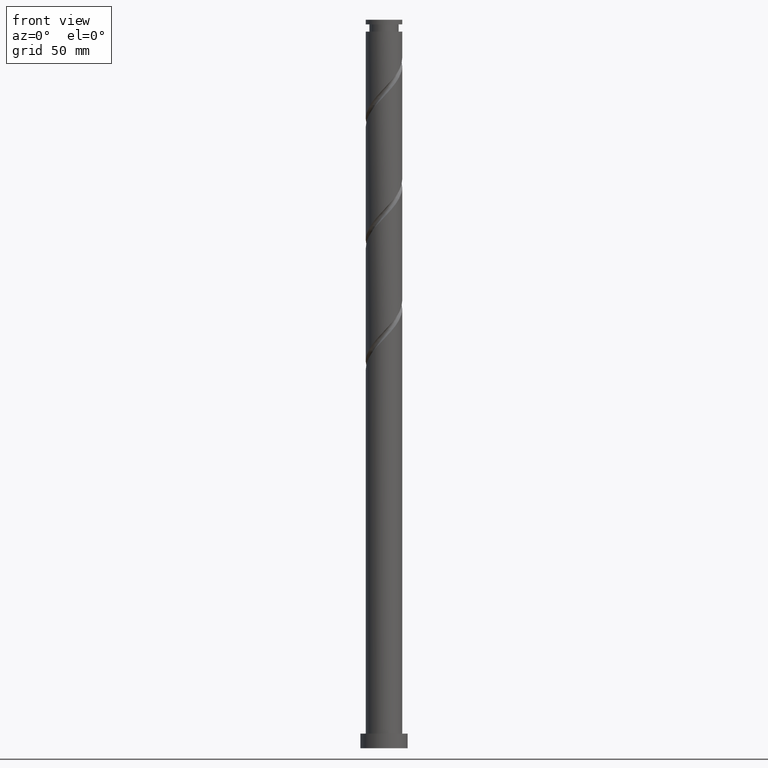
[diagram: clean part render]
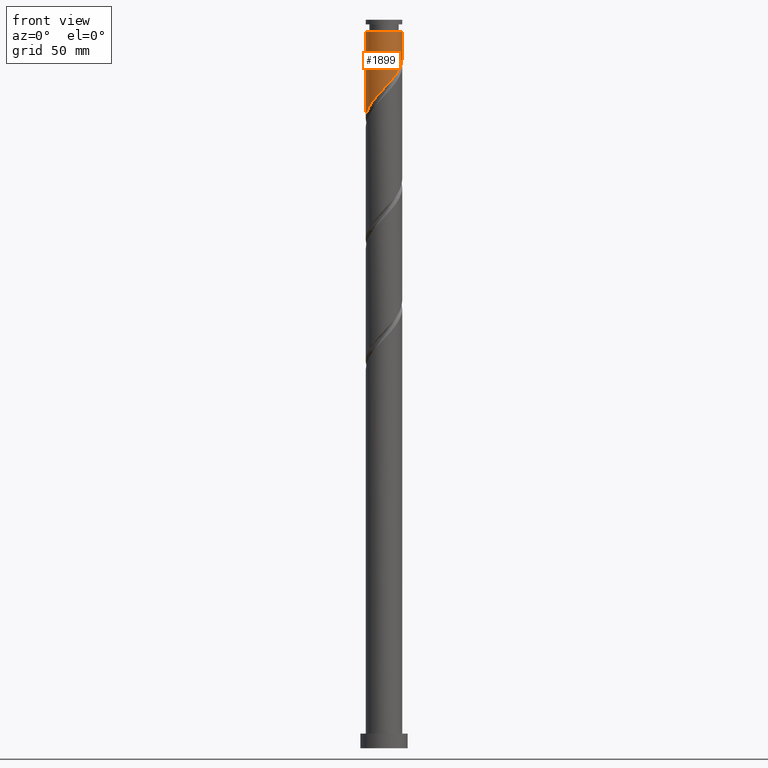
[diagram: same view with one face highlighted and labeled with its STEP entity id]
A machine part, front view. The second image highlights one B-rep face of the part: STEP entity #1899.
In plain terms, the highlighted cylindrical surface (edge-blend (fillet) strip) has radius 10 mm, axis along (-0, -0, -1).
Its self-contained STEP definition (entity closure, byte-faithful):
#5 = CARTESIAN_POINT ( 'NONE',  ( -3.019996379816876519, -9.590845212647908014, 359.0717007790819366 ) ) ;
#26 = CARTESIAN_POINT ( 'NONE',  ( 1.142044211173212975, -9.990016268595571347, 363.5161452235263937 ) ) ;
#141 = CARTESIAN_POINT ( 'NONE',  ( -8.080585767236980743, -5.984047433418745676, 352.4050341124153647 ) ) ;
#150 = CARTESIAN_POINT ( 'NONE',  ( -5.803951609303261705, -8.143349784754805754, 355.7383674457486222 ) ) ;
#166 = CARTESIAN_POINT ( 'NONE',  ( 10.00000000000000178, -0.4784399928674961111, 378.4663732748172151 ) ) ;
#195 = CARTESIAN_POINT ( 'NONE',  ( 10.00000000000000355, 5.471120043963557897E-15, 378.9749218003813098 ) ) ;
#315 = CARTESIAN_POINT ( 'NONE',  ( 4.150371980848572839, -9.098044428369600922, 366.8494785568597649 ) ) ;
#333 = EDGE_CURVE ( 'NONE', #1229, #1620, #1861, .T. ) ;
#335 = CARTESIAN_POINT ( 'NONE',  ( -7.370218964083902868, -6.758688661379370188, 353.5161452235265074 ) ) ;
#359 = DIRECTION ( 'NONE',  ( -0.000000000000000000, -0.000000000000000000, -1.000000000000000000 ) ) ;
#421 = CARTESIAN_POINT ( 'NONE',  ( 0.000000000000000000, 0.000000000000000000, 393.5161452235263937 ) ) ;
#422 = EDGE_CURVE ( 'NONE', #1706, #1646, #1900, .T. ) ;
#450 = DIRECTION ( 'NONE',  ( -0.000000000000000000, -0.000000000000000000, -1.000000000000000000 ) ) ;
#466 = CARTESIAN_POINT ( 'NONE',  ( 9.954323590151835432, -0.9546946436147987214, 377.9605896679708508 ) ) ;
#594 = DIRECTION ( 'NONE',  ( -1.000000000000000000, 0.000000000000000000, 0.000000000000000000 ) ) ;
#600 = CARTESIAN_POINT ( 'NONE',  ( -9.999999999999968026, 0.000000000000000000, 393.5161452235263937 ) ) ;
#629 = CARTESIAN_POINT ( 'NONE',  ( 8.705417805181468793, -4.920945116258622853, 373.5161452235263937 ) ) ;
#638 = CARTESIAN_POINT ( 'NONE',  ( 6.795917408009017890, -7.410816190582407259, 370.1828118901930225 ) ) ;
#648 = CARTESIAN_POINT ( 'NONE',  ( 5.951266195457261432, -8.036319472918416196, 369.0717007790820503 ) ) ;
#658 = CARTESIAN_POINT ( 'NONE',  ( 0.000000000000000000, 0.000000000000000000, 400.0000000000000000 ) ) ;
#708 = VECTOR ( 'NONE', #979, 1000.000000000000000 ) ;
#753 = CARTESIAN_POINT ( 'NONE',  ( 9.999999999999968026, 1.224646799147351284E-15, 393.5161452235263937 ) ) ;
#786 = CARTESIAN_POINT ( 'NONE',  ( -9.148159000562355203, -4.173233390011671595, 350.1828118901931930 ) ) ;
#816 = CARTESIAN_POINT ( 'NONE',  ( -9.935289914203551120, -1.135787973490349101, 346.8494785568596512 ) ) ;
#827 = CARTESIAN_POINT ( 'NONE',  ( 10.00000000000000178, 1.224646799147353454E-15, 400.0000000000000000 ) ) ;
#844 = ORIENTED_EDGE ( 'NONE', *, *, #1287, .T. ) ;
#934 = CARTESIAN_POINT ( 'NONE',  ( -10.00000000000000355, -0.5697373744643030591, 346.2471797764323469 ) ) ;
#935 = ORIENTED_EDGE ( 'NONE', *, *, #333, .F. ) ;
#953 = CARTESIAN_POINT ( 'NONE',  ( -9.482036394194125251, -3.176631206038586175, 349.0717007790818798 ) ) ;
#960 = FACE_OUTER_BOUND ( 'NONE', #1583, .T. ) ;
#969 = CARTESIAN_POINT ( 'NONE',  ( -8.614372383899667085, -5.078640411715207748, 351.2939230013041083 ) ) ;
#979 = DIRECTION ( 'NONE',  ( -0.000000000000000000, -0.000000000000000000, -1.000000000000000000 ) ) ;
#999 = CARTESIAN_POINT ( 'NONE',  ( -10.00000000000000178, 0.000000000000000000, 400.0000000000000000 ) ) ;
#1104 = CARTESIAN_POINT ( 'NONE',  ( 9.538305559066323269, -3.003452523660809170, 375.7383674457486791 ) ) ;
#1110 =( BOUNDED_CURVE ( )  B_SPLINE_CURVE ( 2, ( #1424, #166, #466, #1558, #1104, #1433, #629, #1741, #1879, #638, #648, #1115, #315, #1723, #1901, #26, #1260, #1280, #1733, #5, #1127, #1416, #150, #1585, #335, #141, #969, #786, #953, #1860, #816, #934, #1568 ),
 .UNSPECIFIED., .F., .T. ) 
 B_SPLINE_CURVE_WITH_KNOTS ( ( 3, 2, 2, 2, 2, 2, 2, 2, 2, 2, 2, 2, 2, 2, 2, 2, 3 ),
 ( 0.3045286012773114059, 0.3083333333333333481, 0.3166666666666666519, 0.3250000000000000111, 0.3333333333333333148, 0.3416666666666666741, 0.3499999999999999778, 0.3583333333333333370, 0.3666666666666666408, 0.3750000000000000000, 0.3833333333333333592, 0.3916666666666666630, 0.4000000000000000222, 0.4083333333333333259, 0.4166666666666666852, 0.4249999999999999889, 0.4295286012773116280 ),
 .UNSPECIFIED. ) 
 CURVE ( )  GEOMETRIC_REPRESENTATION_ITEM ( )  RATIONAL_B_SPLINE_CURVE ( ( 0.9066196499552116039, 0.9068171577856243282, 0.9090909090909231605, 0.9041108139711716563, 0.9090909090909231605, 0.9041108139711716563, 0.9090909090909231605, 0.9041108139711716563, 0.9090909090909231605, 0.9041108139711716563, 0.9090909090909231605, 0.9041108139711716563, 0.9090909090909231605, 0.9041108139711716563, 0.9090909090909231605, 0.9041108139711716563, 0.9090909090909231605, 0.9041108139711716563, 0.9090909090909231605, 0.9041108139711716563, 0.9090909090909231605, 0.9041108139711716563, 0.9090909090909231605, 0.9041108139711716563, 0.9090909090909231605, 0.9041108139711716563, 0.9090909090909231605, 0.9041108139711716563, 0.9090909090909231605, 0.9041108139711716563, 0.9090909090909231605, 0.9063845652764703775, 0.9066196499552116039 ) ) 
 REPRESENTATION_ITEM ( '' )  );
#1115 = CARTESIAN_POINT ( 'NONE',  ( 5.106614982905505862, -8.661822755254421580, 367.9605896679708508 ) ) ;
#1127 = CARTESIAN_POINT ( 'NONE',  ( -3.984023718746288800, -9.172107446408757525, 357.9605896679709076 ) ) ;
#1229 = VERTEX_POINT ( 'NONE', #753 ) ;
#1260 = CARTESIAN_POINT ( 'NONE',  ( 0.09104542128179636540, -9.999585527973833265, 362.4050341124153078 ) ) ;
#1272 = AXIS2_PLACEMENT_3D ( 'NONE', #658, #1293, #2012 ) ;
#1280 = CARTESIAN_POINT ( 'NONE',  ( -0.9599533686096201057, -10.00915478735209696, 361.2939230013041652 ) ) ;
#1287 = EDGE_CURVE ( 'NONE', #1229, #1706, #1434, .T. ) ;
#1293 = DIRECTION ( 'NONE',  ( -0.000000000000000000, -0.000000000000000000, -1.000000000000000000 ) ) ;
#1416 = CARTESIAN_POINT ( 'NONE',  ( -4.948051057675693976, -8.753369680169619471, 356.8494785568598786 ) ) ;
#1424 = CARTESIAN_POINT ( 'NONE',  ( 10.00000000000000355, 5.471120043963557897E-15, 378.9749218003813098 ) ) ;
#1433 = CARTESIAN_POINT ( 'NONE',  ( 9.222629978410189722, -4.005968835176823895, 374.6272563346375932 ) ) ;
#1434 = CIRCLE ( 'NONE', #1846, 9.999999999999968026 ) ;
#1442 = CYLINDRICAL_SURFACE ( 'NONE', #1272, 10.00000000000000178 ) ;
#1471 = CARTESIAN_POINT ( 'NONE',  ( -10.00000000000000355, 4.125762656103666624E-15, 345.6415884670478249 ) ) ;
#1558 = CARTESIAN_POINT ( 'NONE',  ( 9.853981139722460370, -2.000936212144786897, 376.8494785568597649 ) ) ;
#1568 = CARTESIAN_POINT ( 'NONE',  ( -10.00000000000000355, 4.125762656103666624E-15, 345.6415884670478249 ) ) ;
#1583 = EDGE_LOOP ( 'NONE', ( #935, #844, #1592, #1687 ) ) ;
#1585 = CARTESIAN_POINT ( 'NONE',  ( -6.659852160930825882, -7.533329889339995589, 354.6272563346375932 ) ) ;
#1592 = ORIENTED_EDGE ( 'NONE', *, *, #422, .T. ) ;
#1620 = VERTEX_POINT ( 'NONE', #195 ) ;
#1646 = VERTEX_POINT ( 'NONE', #1471 ) ;
#1654 = VECTOR ( 'NONE', #359, 1000.000000000000000 ) ;
#1687 = ORIENTED_EDGE ( 'NONE', *, *, #1886, .F. ) ;
#1706 = VERTEX_POINT ( 'NONE', #600 ) ;
#1723 = CARTESIAN_POINT ( 'NONE',  ( 3.194128978791636264, -9.534266101484783817, 365.7383674457486791 ) ) ;
#1733 = CARTESIAN_POINT ( 'NONE',  ( -1.989974874213246370, -9.800000000000000711, 360.1828118901931362 ) ) ;
#1741 = CARTESIAN_POINT ( 'NONE',  ( 8.188205631952733654, -5.835921397340429806, 372.4050341124153078 ) ) ;
#1846 = AXIS2_PLACEMENT_3D ( 'NONE', #421, #450, #594 ) ;
#1860 = CARTESIAN_POINT ( 'NONE',  ( -9.815913787825893522, -2.180029022065501199, 347.9605896679708508 ) ) ;
#1861 = LINE ( 'NONE', #827, #1654 ) ;
#1879 = CARTESIAN_POINT ( 'NONE',  ( 7.492061519980878437, -6.623368793961417644, 371.2939230013042220 ) ) ;
#1886 = EDGE_CURVE ( 'NONE', #1620, #1646, #1110, .T. ) ;
#1899 = ADVANCED_FACE ( 'NONE', ( #960 ), #1442, .T. ) ;
#1900 = LINE ( 'NONE', #999, #708 ) ;
#1901 = CARTESIAN_POINT ( 'NONE',  ( 2.168086594982422621, -9.762141185040176694, 364.6272563346374795 ) ) ;
#2012 = DIRECTION ( 'NONE',  ( -1.000000000000000000, 0.000000000000000000, 0.000000000000000000 ) ) ;